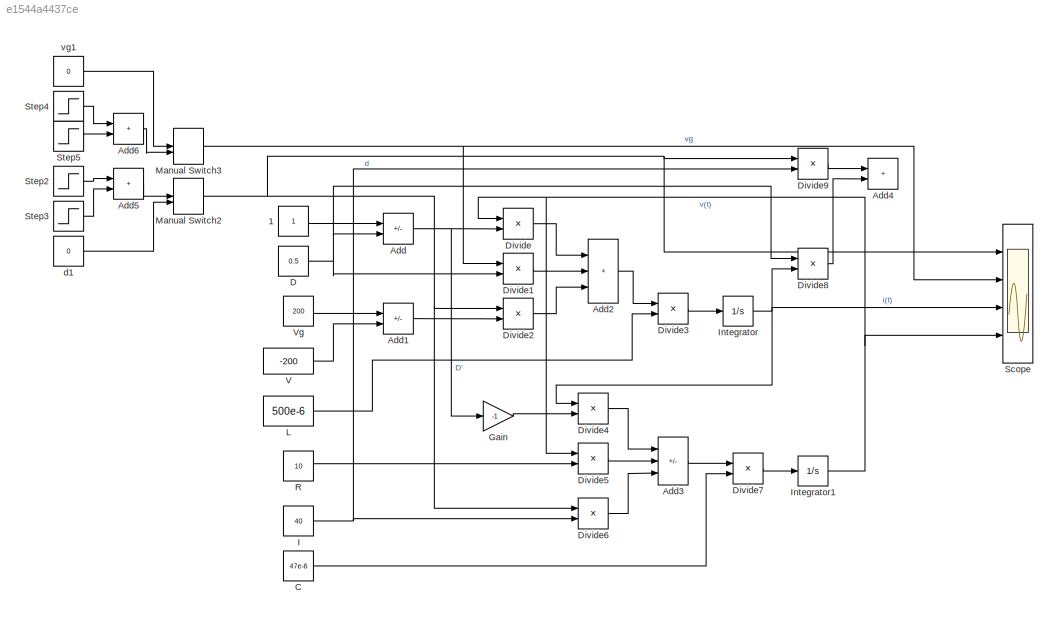
MODEL slx_e1544a4437ce
KIND model
CONFIG AbsTol = auto
CONFIG EnableMultiTasking = off
CONFIG FixedStep = auto
CONFIG MaxStep = auto
CONFIG MinStep = auto
CONFIG RelTol = 1e-3
CONFIG SampleTimeConstraint = Unconstrained
CONFIG Solver = VariableStepAuto
CONFIG SolverName = VariableStepAuto
CONFIG StartTime = 0.0
CONFIG StopTime = 0.03
BLOCK [Constant] 1
BLOCK [Sum] Add
  IconShape = rectangular
  Inputs = +-
  Ports = [2, 1]
BLOCK [Sum] Add1
  IconShape = rectangular
  Inputs = +-
  Ports = [2, 1]
BLOCK [Sum] Add2
  IconShape = rectangular
  Inputs = +++
  Ports = [3, 1]
BLOCK [Sum] Add3
  IconShape = rectangular
  Inputs = +-+
  Ports = [3, 1]
BLOCK [Sum] Add4
  IconShape = rectangular
  Ports = [2, 1]
BLOCK [Sum] Add5
  IconShape = rectangular
  Ports = [2, 1]
BLOCK [Sum] Add6
  IconShape = rectangular
  Ports = [2, 1]
BLOCK [Constant] C
  Value = 47e-6
BLOCK [Constant] D
  Value = 0.5
BLOCK [Product] Divide
  Inputs = **
  Ports = [2, 1]
BLOCK [Product] Divide1
  Inputs = **
  Ports = [2, 1]
BLOCK [Product] Divide2
  Inputs = **
  Ports = [2, 1]
BLOCK [Product] Divide3
  Inputs = */
  Ports = [2, 1]
BLOCK [Product] Divide4
  Inputs = **
  Ports = [2, 1]
BLOCK [Product] Divide5
  Inputs = */
  Ports = [2, 1]
BLOCK [Product] Divide6
  Inputs = **
  Ports = [2, 1]
BLOCK [Product] Divide7
  Inputs = */
  Ports = [2, 1]
BLOCK [Product] Divide8
  Inputs = **
  Ports = [2, 1]
BLOCK [Product] Divide9
  Inputs = **
  Ports = [2, 1]
BLOCK [Gain] Gain
  Gain = -1
BLOCK [Constant] I
  Value = 40
BLOCK [Integrator] Integrator
  Ports = [1, 1]
BLOCK [Integrator] Integrator1
  Ports = [1, 1]
BLOCK [Constant] L
  Value = 500e-6
BLOCK [ManualSwitch] Manual Switch2
  CurrentSetting = 0
BLOCK [ManualSwitch] Manual Switch3
  CurrentSetting = 0
BLOCK [Constant] R
  Value = 10
BLOCK [Scope] Scope
  Floating = off
  NumInputPorts = 4
  Ports = [4]
  ScopeSpecificationString = Simulink.scopes.TimeScopeBlockCfg('CurrentConfiguration', extmgr.ConfigurationSet(extmgr.Configuration('Core','General UI',true,'FigureColor',[1 1 1],'ShowStatusbar',false),extmgr.Configuration('Core','Source UI',true),extmgr.Configuration('Sources','WiredSimulink',true,'SampleTime','1e-5'),extmgr.Configuration('Visuals','Time Domain',true,'SerializedDisplays',{struct('MinYLimReal','-1.00000','Max...<+4139ch>
BLOCK [Step] Step2
  After = 0.02
  SampleTime = 0
  Time = 0.01
BLOCK [Step] Step3
  After = -0.02
  SampleTime = 0
  Time = 0.02
BLOCK [Step] Step4
  After = 60
  SampleTime = 0
  Time = 0.02
BLOCK [Step] Step5
  After = -60
  SampleTime = 0
  Time = 0.01
BLOCK [Constant] V
  Value = -200
BLOCK [Constant] Vg
  Value = 200
BLOCK [Constant] d1
  Value = 0
BLOCK [Constant] vg1
  Value = 0
LINE 1:1 -> Add:1
LINE Add1:1 -> Divide2:2
LINE Add2:1 -> Divide3:1
LINE Add3:1 -> Divide7:1
LINE Add5:1 -> Manual Switch2:1
LINE Add6:1 -> Manual Switch3:2
NET Add:1 -> Divide:2, Gain:1
LINE C:1 -> Divide7:2
NET D:1 -> Add:2, Divide1:2, Divide8:1
LINE Divide1:1 -> Add2:2
LINE Divide2:1 -> Add2:3
LINE Divide3:1 -> Integrator:1
LINE Divide4:1 -> Add3:1
LINE Divide5:1 -> Add3:2
LINE Divide6:1 -> Add3:3
LINE Divide7:1 -> Integrator1:1
LINE Divide8:1 -> Add4:2
LINE Divide9:1 -> Add4:1
LINE Divide:1 -> Add2:1
LINE Gain:1 -> Divide4:2
NET I:1 -> Divide6:2, Divide9:2
NET Integrator1:1 -> Divide5:1, Divide:1, Scope:4
NET Integrator:1 -> Divide4:1, Divide8:2, Scope:3
LINE L:1 -> Divide3:2
NET Manual Switch2:1 -> Divide2:1, Divide6:1, Divide9:1, Scope:1
NET Manual Switch3:1 -> Divide1:1, Scope:2
LINE R:1 -> Divide5:2
LINE Step2:1 -> Add5:1
LINE Step3:1 -> Add5:2
LINE Step4:1 -> Add6:1
LINE Step5:1 -> Add6:2
LINE V:1 -> Add1:2
LINE Vg:1 -> Add1:1
LINE d1:1 -> Manual Switch2:2
LINE vg1:1 -> Manual Switch3:1
note: NET lines group one-source signal fan-out (src -> all destinations, sorted); 1:1 wires keep LINE
